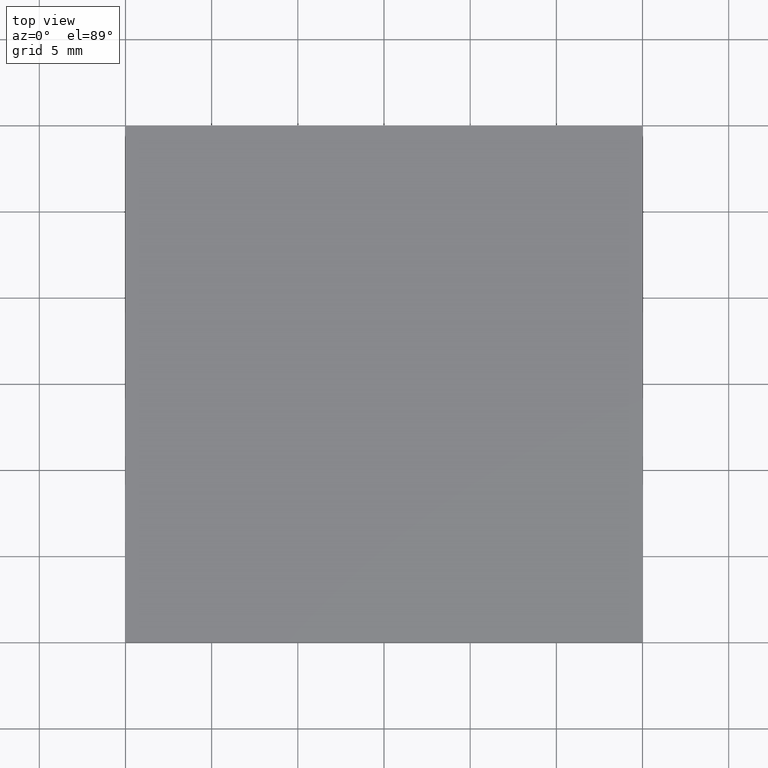
[diagram: clean part render]
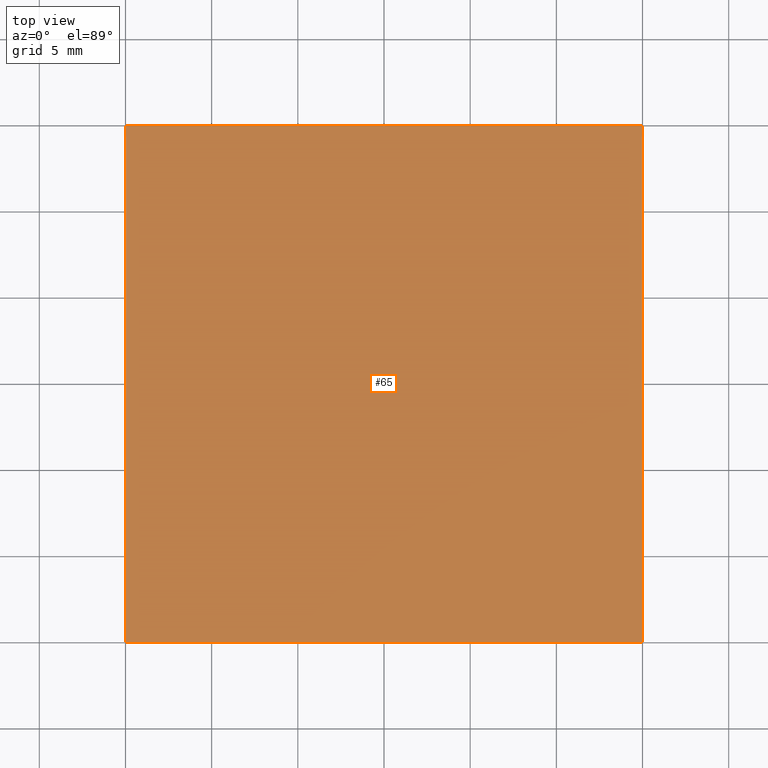
[diagram: same view with one face highlighted and labeled with its STEP entity id]
A machine part, top view. The second image highlights one B-rep face of the part: STEP entity #65.
In plain terms, the highlighted planar face has unit normal (0, 0, -1).
Its self-contained STEP definition (entity closure, byte-faithful):
#14 = CARTESIAN_POINT ( 'NONE',  ( -14.99999999999999800, -14.99999999999999800, 1.100000000000000100 ) ) ;
#17 = DIRECTION ( 'NONE',  ( 0.0000000000000000000, 0.0000000000000000000, -1.000000000000000000 ) ) ;
#20 = VECTOR ( 'NONE', #48, 1000.000000000000000 ) ;
#38 = EDGE_CURVE ( 'NONE', #266, #188, #254, .T. ) ;
#42 = CARTESIAN_POINT ( 'NONE',  ( 15.00000000000000200, 15.00000000000000200, 1.100000000000000100 ) ) ;
#48 = DIRECTION ( 'NONE',  ( 1.000000000000000000, 0.0000000000000000000, 0.0000000000000000000 ) ) ;
#50 = CARTESIAN_POINT ( 'NONE',  ( 15.00000000000000200, -14.99999999999999800, 1.100000000000000100 ) ) ;
#61 = EDGE_CURVE ( 'NONE', #190, #198, #311, .T. ) ;
#62 = ORIENTED_EDGE ( 'NONE', *, *, #296, .T. ) ;
#65 = ADVANCED_FACE ( 'NONE', ( #131 ), #247, .F. ) ;
#83 = LINE ( 'NONE', #203, #20 ) ;
#84 = AXIS2_PLACEMENT_3D ( 'NONE', #87, #17, #222 ) ;
#87 = CARTESIAN_POINT ( 'NONE',  ( 0.0000000000000000000, 0.0000000000000000000, 1.100000000000000100 ) ) ;
#110 = ORIENTED_EDGE ( 'NONE', *, *, #61, .T. ) ;
#123 = DIRECTION ( 'NONE',  ( -1.000000000000000000, -0.0000000000000000000, -0.0000000000000000000 ) ) ;
#131 = FACE_OUTER_BOUND ( 'NONE', #172, .T. ) ;
#134 = ORIENTED_EDGE ( 'NONE', *, *, #38, .T. ) ;
#136 = LINE ( 'NONE', #232, #194 ) ;
#137 = DIRECTION ( 'NONE',  ( 0.0000000000000000000, 1.000000000000000000, 0.0000000000000000000 ) ) ;
#160 = CARTESIAN_POINT ( 'NONE',  ( -14.99999999999999800, 15.00000000000000200, 1.100000000000000100 ) ) ;
#172 = EDGE_LOOP ( 'NONE', ( #134, #62, #110, #240 ) ) ;
#188 = VERTEX_POINT ( 'NONE', #42 ) ;
#190 = VERTEX_POINT ( 'NONE', #160 ) ;
#194 = VECTOR ( 'NONE', #123, 1000.000000000000000 ) ;
#198 = VERTEX_POINT ( 'NONE', #226 ) ;
#203 = CARTESIAN_POINT ( 'NONE',  ( -14.99999999999999800, -14.99999999999999800, 1.100000000000000100 ) ) ;
#207 = VECTOR ( 'NONE', #220, 1000.000000000000000 ) ;
#214 = VECTOR ( 'NONE', #137, 1000.000000000000000 ) ;
#220 = DIRECTION ( 'NONE',  ( -0.0000000000000000000, -1.000000000000000000, -0.0000000000000000000 ) ) ;
#222 = DIRECTION ( 'NONE',  ( -1.000000000000000000, 0.0000000000000000000, -0.0000000000000000000 ) ) ;
#226 = CARTESIAN_POINT ( 'NONE',  ( -14.99999999999999800, -14.99999999999999800, 1.100000000000000100 ) ) ;
#232 = CARTESIAN_POINT ( 'NONE',  ( -14.99999999999999800, 15.00000000000000200, 1.100000000000000100 ) ) ;
#240 = ORIENTED_EDGE ( 'NONE', *, *, #255, .T. ) ;
#247 = PLANE ( 'NONE',  #84 ) ;
#254 = LINE ( 'NONE', #307, #214 ) ;
#255 = EDGE_CURVE ( 'NONE', #198, #266, #83, .T. ) ;
#266 = VERTEX_POINT ( 'NONE', #50 ) ;
#296 = EDGE_CURVE ( 'NONE', #188, #190, #136, .T. ) ;
#307 = CARTESIAN_POINT ( 'NONE',  ( 15.00000000000000200, -14.99999999999999800, 1.100000000000000100 ) ) ;
#311 = LINE ( 'NONE', #14, #207 ) ;